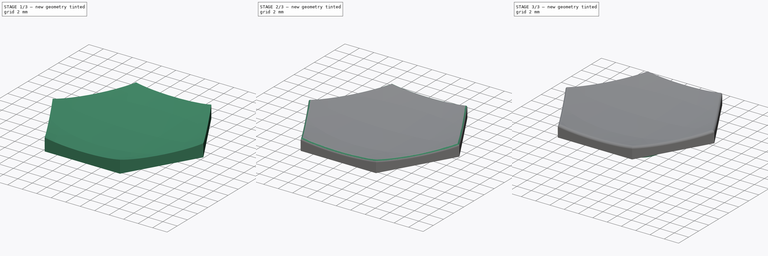
[diagram: build sequence overview — one tinted view per stage of 3, left to right]
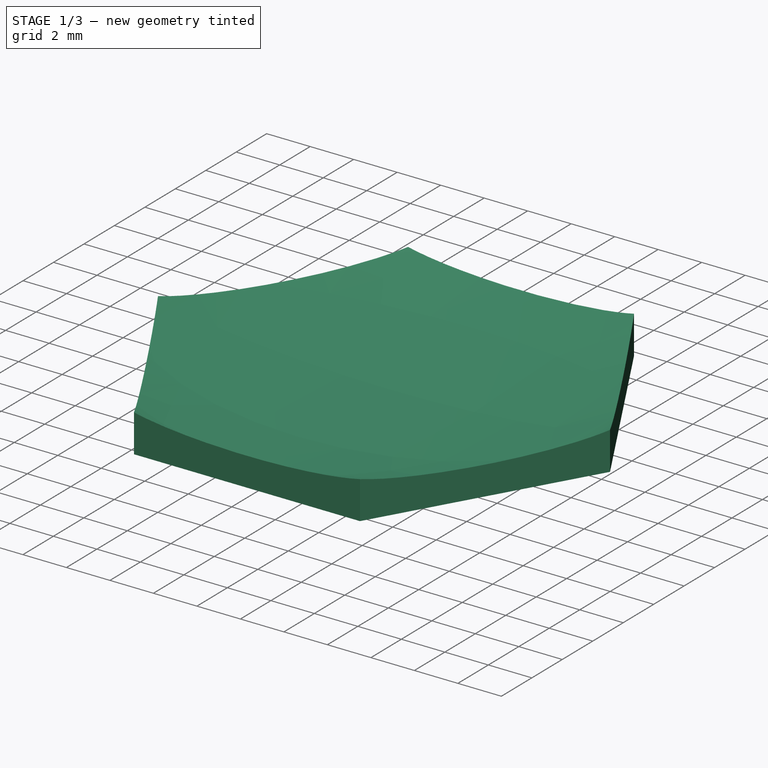
[diagram: stage 1 of 3 — iso view after this stage's code; geometry added in this stage tinted green]
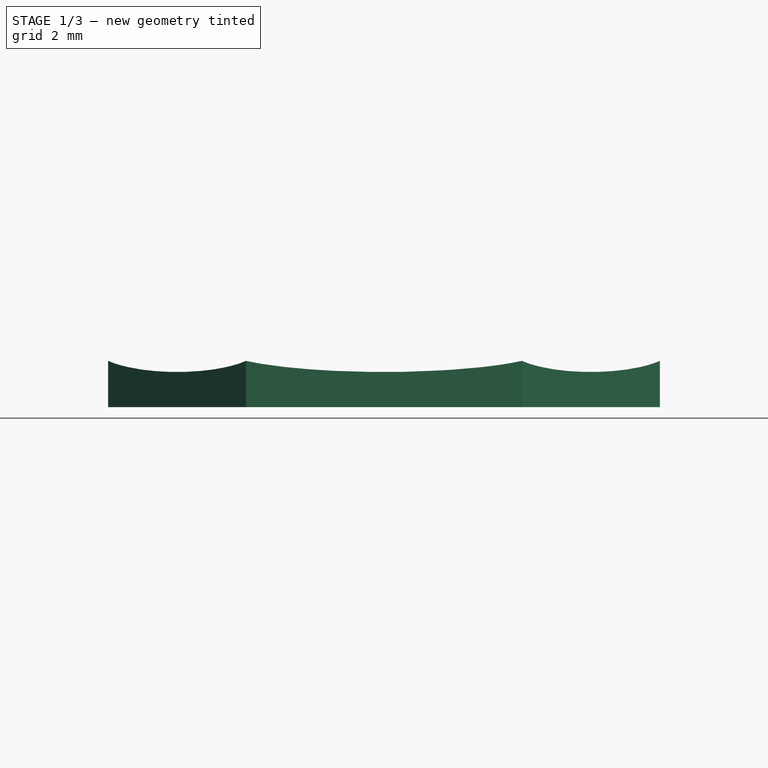
[diagram: stage 1 of 3 — front view after this stage's code; geometry added in this stage tinted green]
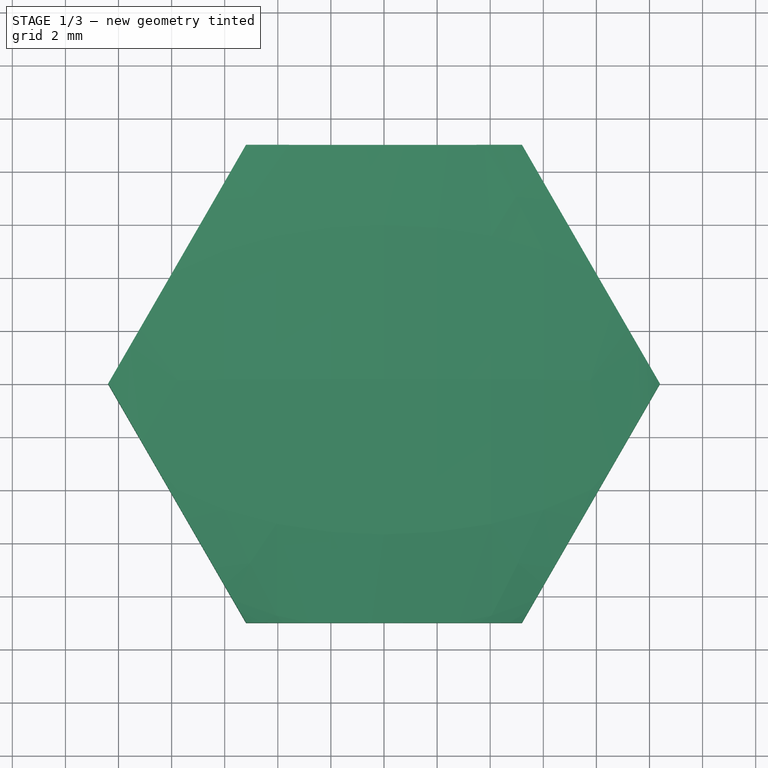
[diagram: stage 1 of 3 — top view after this stage's code; geometry added in this stage tinted green]
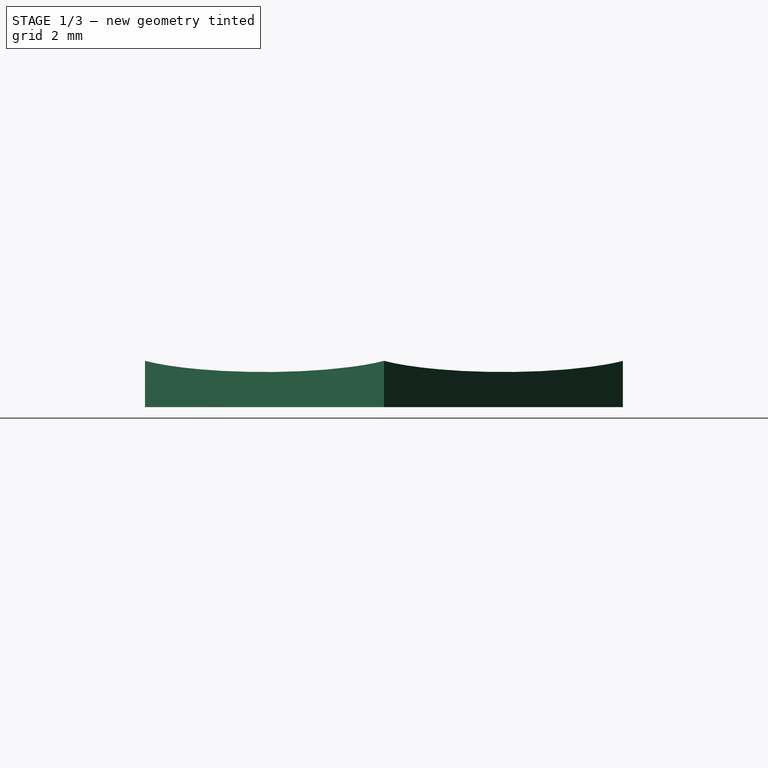
[diagram: stage 1 of 3 — right view after this stage's code; geometry added in this stage tinted green]
FCSTD DOCUMENT  (FreeCAD 0.18.4R)
Label: hex_keycap
License: All rights reserved
LicenseURL: http://en.wikipedia.org/wiki/All_rights_reserved
objects: Sketcher::SketchObject×3, PartDesign::Pad×2, PartDesign::SubtractiveEllipsoid×1, PartDesign::Fillet×1, PartDesign::Pocket×1, PartDesign::Body×1
note: 13 computed .brp shape members not serialized (recipe doc carries the construction recipe); baked Part::Feature solids carry a one-line shape summary decoded from their .brp

FEATURE [Sketcher::SketchObject] Sketch
  MapMode = 5
  Support = -> [XY_Plane]
  sketch-geometry (8):
    g0: LineSegment StartX=10.3923 StartY=-1.8e-15 StartZ=0 EndX=5.19615 EndY=9 EndZ=0
    g1: LineSegment StartX=5.19615 StartY=9 StartZ=0 EndX=-5.19615 EndY=9 EndZ=0
    g2: LineSegment StartX=-5.19615 StartY=9 StartZ=0 EndX=-10.3923 EndY=1.8e-15 EndZ=0
    g3: LineSegment StartX=-10.3923 StartY=1.8e-15 StartZ=0 EndX=-5.19615 EndY=-9 EndZ=0
    g4: LineSegment StartX=-5.19615 StartY=-9 StartZ=0 EndX=5.19615 EndY=-9 EndZ=0
    g5: LineSegment StartX=5.19615 StartY=-9 StartZ=0 EndX=10.3923 EndY=-1.8e-15 EndZ=0
    g6: Circle [constr] CenterX=0 CenterY=0 CenterZ=0 NormalX=0 NormalY=0 NormalZ=1 AngleXU=0 Radius=10.3923
    g7: LineSegment [constr] StartX=0 StartY=0 StartZ=0 EndX=0 EndY=9 EndZ=0
  constraints (19):
    c: Coincident(g0,g1)
    c: Coincident(g1,g2)
    c: Coincident(g2,g3)
    c: Coincident(g3,g4)
    c: Coincident(g4,g5)
    c: Coincident(g5,g0)
    c: Equal(g0, g1-g5) x5
    c: PointOnObject(g0,g6)
    c: PointOnObject(g1,g6)
    c: PointOnObject(g2,g6)
    c: PointOnObject(g3,g6)
    c: PointOnObject(g4,g6)
    c: PointOnObject(g5,g6)
    c: Coincident(g6,g-1)
    c: Vertical(g7)
    c: Coincident(g7,g-1)
    c: Horizontal(g1)
    c: PointOnObject(g7,g1)
    c: Distance(g7) = 9
FEATURE [PartDesign::Pad] Pad
  Length = 2
  Length2 = 100
  Profile = -> Sketch
  Type = 0
FEATURE [PartDesign::SubtractiveEllipsoid] Ellipsoid
  Angle1 = -90
  Angle2 = 90
  Angle3 = 358
  AttacherType = Attacher::AttachEngine3D
  AttachmentOffset = pos=(0,0,0.3) rot=(0,-1,0;1.5708rad)
  BaseFeature = -> Pad
  MapMode = 5
  Placement = pos=(0,0,2.3) rot=(0,-1,0;1.5708rad)
  Radius1 = 11
  Radius2 = 1.7
  Radius3 = 11
  Support = -> [Pad]
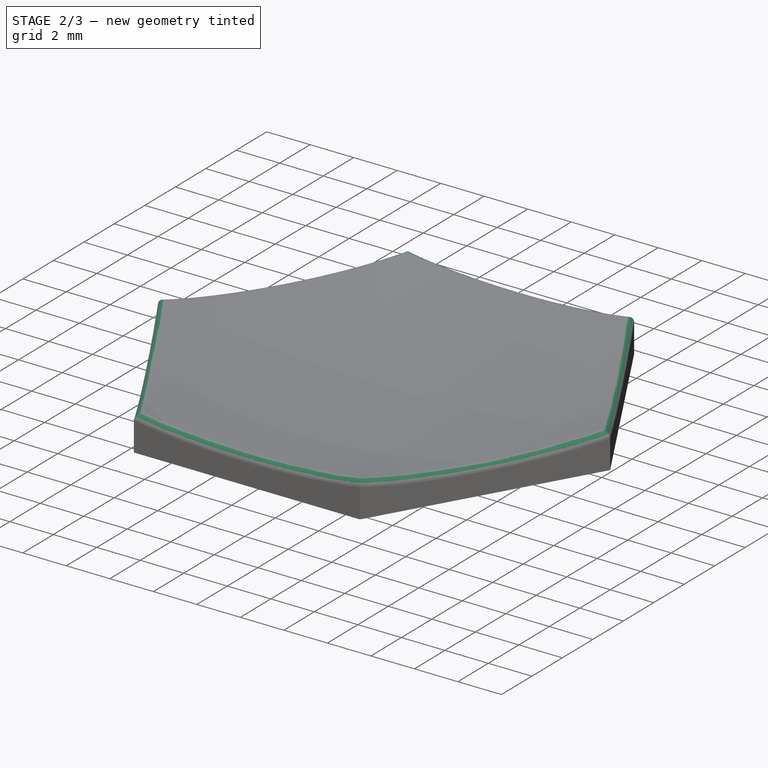
[diagram: stage 2 of 3 — iso view after this stage's code; geometry added in this stage tinted green]
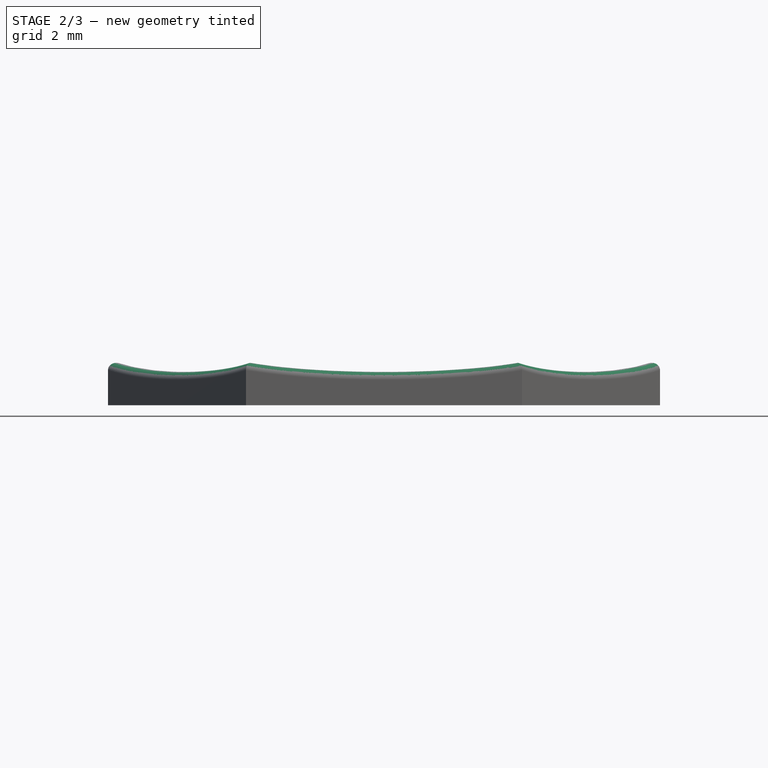
[diagram: stage 2 of 3 — front view after this stage's code; geometry added in this stage tinted green]
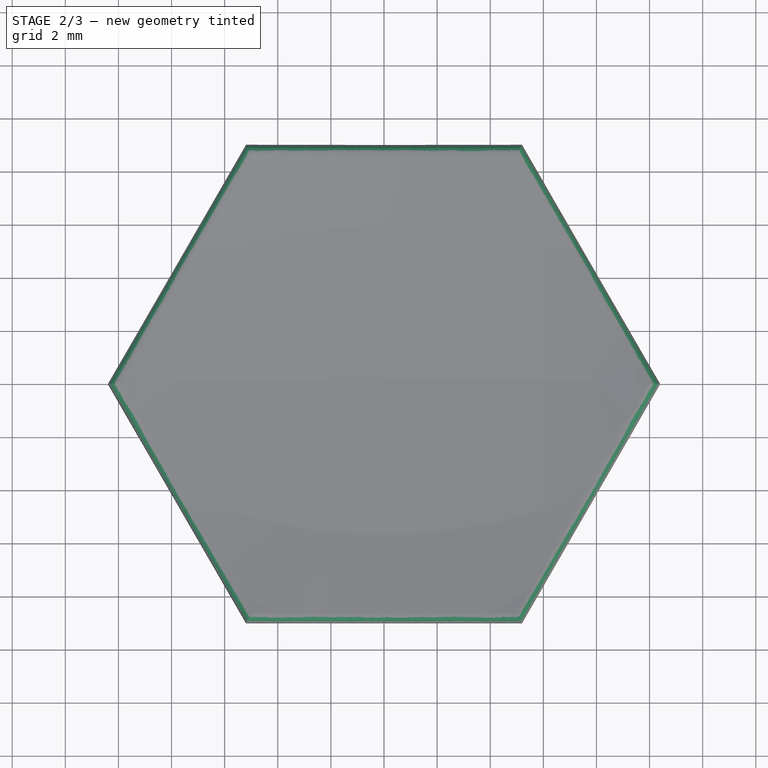
[diagram: stage 2 of 3 — top view after this stage's code; geometry added in this stage tinted green]
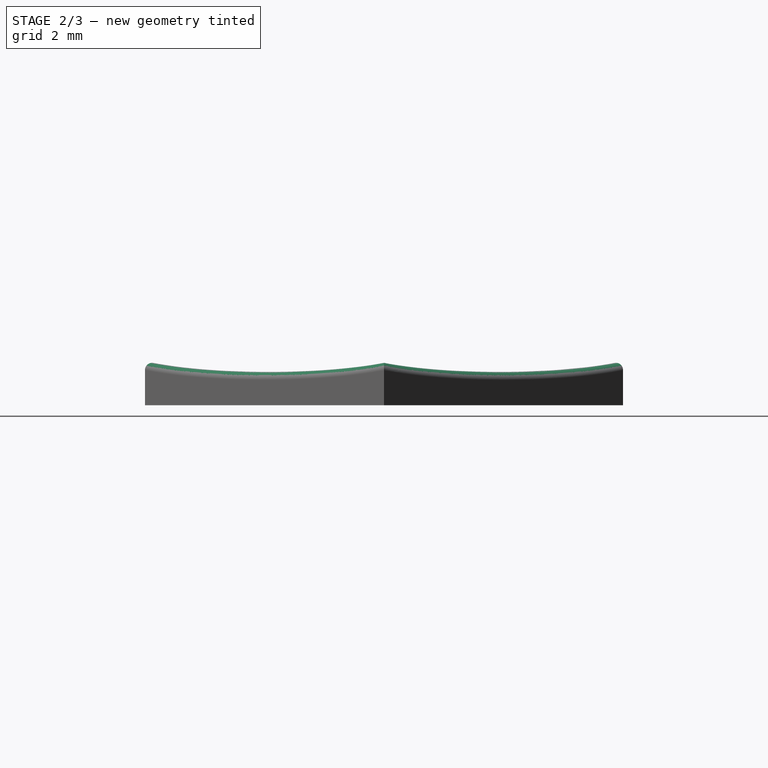
[diagram: stage 2 of 3 — right view after this stage's code; geometry added in this stage tinted green]
FEATURE [PartDesign::Fillet] Fillet
  Base = -> Ellipsoid [Face4]
  BaseFeature = -> Ellipsoid
  Placement = pos=(0,0,2.3) rot=(0,-1,0;1.5708rad)
  Radius = 0.3
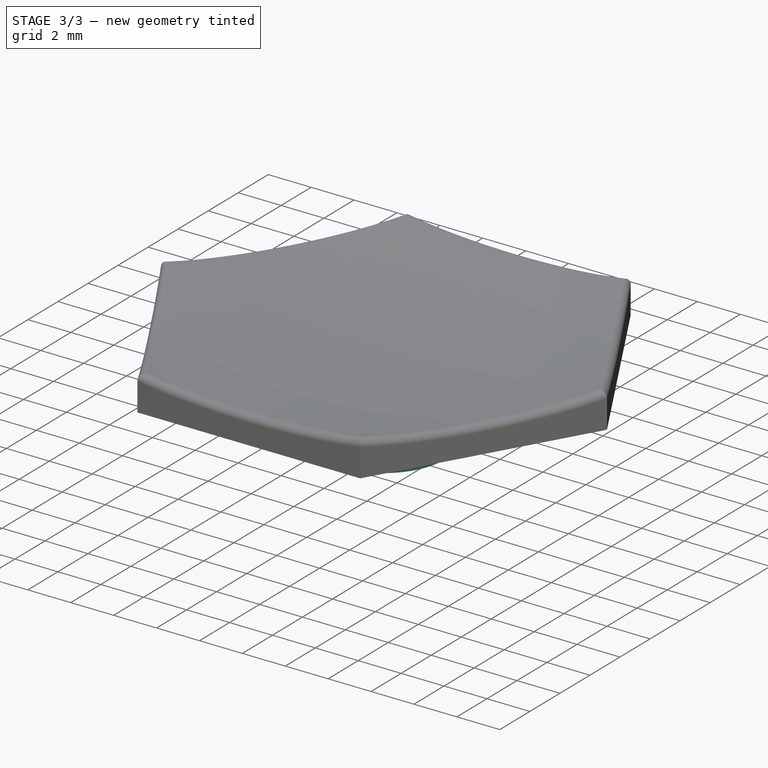
[diagram: stage 3 of 3 — iso view after this stage's code; geometry added in this stage tinted green]
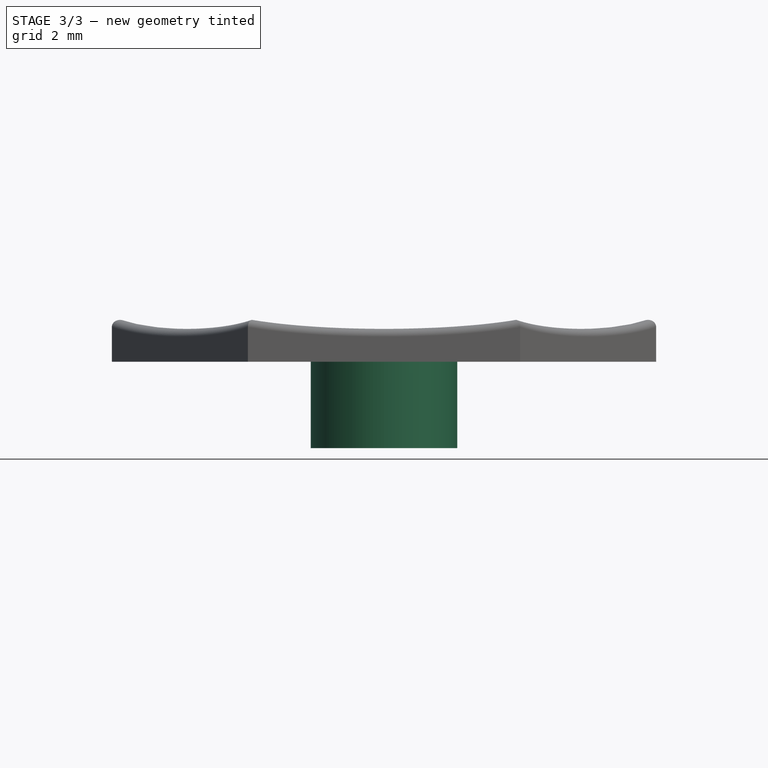
[diagram: stage 3 of 3 — front view after this stage's code; geometry added in this stage tinted green]
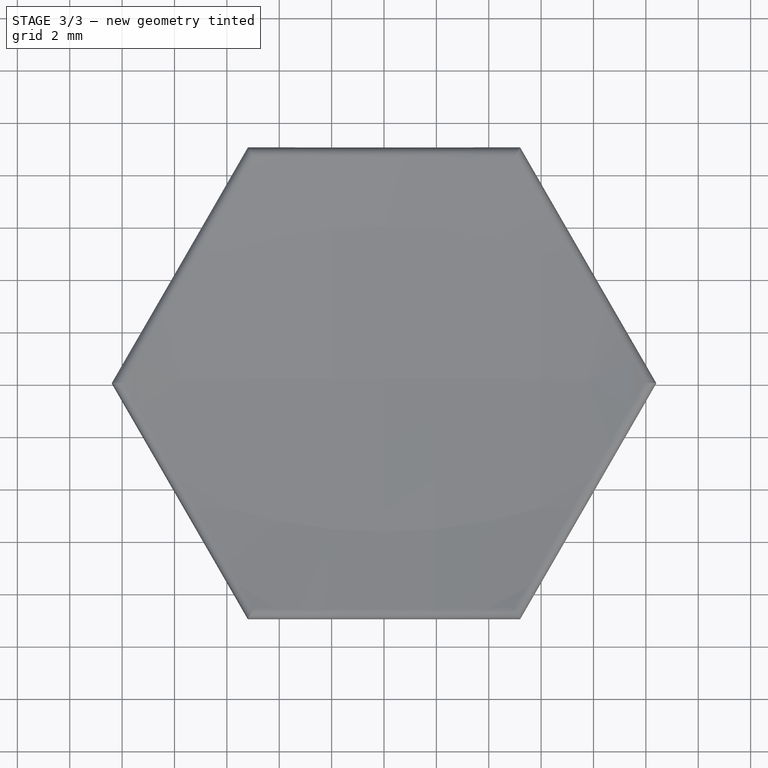
[diagram: stage 3 of 3 — top view after this stage's code; geometry added in this stage tinted green]
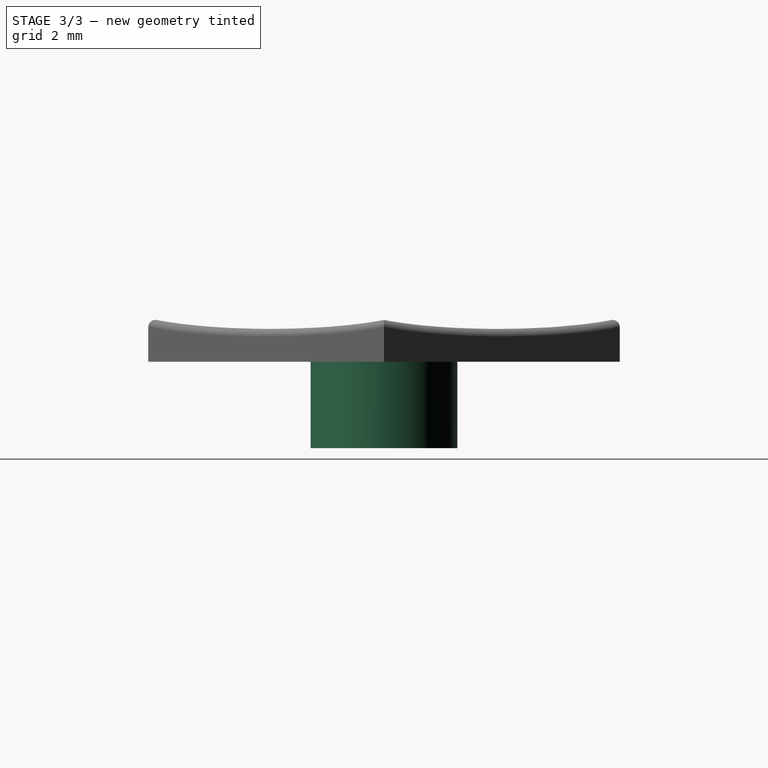
[diagram: stage 3 of 3 — right view after this stage's code; geometry added in this stage tinted green]
FEATURE [Sketcher::SketchObject] Sketch001
  MapMode = 5
  Placement = pos=(3e-16,0,0) rot=(0.707107,-0.707107,0;3.14159rad)
  Support = -> [Fillet]
  sketch-geometry (1):
    g0: Circle CenterX=0 CenterY=0 CenterZ=0 NormalX=0 NormalY=0 NormalZ=1 AngleXU=0 Radius=2.8
  constraints (2):
    c: Coincident(g0,g-1)
    c: Radius(g0) = 2.8
FEATURE [PartDesign::Pad] Pad001
  BaseFeature = -> Fillet
  Length = 3.3
  Length2 = 100
  Placement = pos=(0,0,2.3) rot=(0,-1,0;1.5708rad)
  Profile = -> Sketch001
  Type = 0
FEATURE [Sketcher::SketchObject] Sketch002
  AttachmentOffset = pos=(0,0,0) rot=(0,0,1;0.523599rad)
  MapMode = 5
  Placement = pos=(-6e-16,0,-3.3) rot=(0.5,-0.866025,0;3.14159rad)
  Support = -> [Pad001]
  sketch-geometry (15):
    g0: LineSegment StartX=-0.595 StartY=1.95 StartZ=0 EndX=0.595 EndY=1.95 EndZ=0
    g1: LineSegment StartX=0.595 StartY=1.95 StartZ=0 EndX=0.595 EndY=0.595 EndZ=0
    g2: LineSegment StartX=0.595 StartY=0.595 StartZ=0 EndX=1.95 EndY=0.595 EndZ=0
    g3: LineSegment StartX=1.95 StartY=0.595 StartZ=0 EndX=1.95 EndY=-0.595 EndZ=0
    g4: LineSegment StartX=1.95 StartY=-0.595 StartZ=0 EndX=0.595 EndY=-0.595 EndZ=0
    g5: LineSegment StartX=0.595 StartY=-0.595 StartZ=0 EndX=0.595 EndY=-1.95 EndZ=0
    g6: LineSegment StartX=0.595 StartY=-1.95 StartZ=0 EndX=-0.595 EndY=-1.95 EndZ=0
    g7: LineSegment StartX=-0.595 StartY=-1.95 StartZ=0 EndX=-0.595 EndY=-0.595 EndZ=0
    g8: LineSegment StartX=-0.595 StartY=-0.595 StartZ=0 EndX=-1.95 EndY=-0.595 EndZ=0
    g9: LineSegment StartX=-1.95 StartY=-0.595 StartZ=0 EndX=-1.95 EndY=0.595 EndZ=0
    g10: LineSegment StartX=-1.95 StartY=0.595 StartZ=0 EndX=-0.595 EndY=0.595 EndZ=0
    g11: LineSegment StartX=-0.595 StartY=0.595 StartZ=0 EndX=-0.595 EndY=1.95 EndZ=0
    g12: LineSegment [constr] StartX=-0.595 StartY=1.95 StartZ=0 EndX=-0.595 EndY=-1.95 EndZ=0
    g13: LineSegment [constr] StartX=-0.595 StartY=0.595 StartZ=0 EndX=0.595 EndY=-0.595 EndZ=0
    g14: LineSegment [constr] StartX=0.595 StartY=0.595 StartZ=0 EndX=-0.595 EndY=-0.595 EndZ=0
  constraints (42):
    c: Horizontal(g0)
    c: Horizontal(g2)
    c: Horizontal(g4)
    c: Horizontal(g6)
    c: Horizontal(g8)
    c: Horizontal(g10)
    c: Vertical(g11)
    c: Vertical(g1)
    c: Vertical(g3)
    c: Vertical(g5)
    c: Vertical(g7)
    c: Vertical(g9)
    c: Coincident(g0,g11)
    c: Coincident(g0,g1)
    c: Coincident(g1,g2)
    c: Coincident(g2,g3)
    c: Coincident(g3,g4)
    c: Coincident(g5,g4)
    c: Coincident(g5,g6)
    c: Coincident(g6,g7)
    c: Coincident(g7,g8)
    c: Coincident(g8,g9)
    c: Coincident(g9,g10)
    c: Coincident(g11,g10)
    c: Vertical(g12)
    c: Coincident(g12,g6)
    c: Distance(g12) = 3.9
    c: Coincident(g0,g12)
    c: Equal(g9,g3)
    c: Equal(g11,g1)
    c: Equal(g11,g7)
    c: Equal(g10,g2)
    c: Equal(g2,g4)
    c: Equal(g0,g3)
    c: Equal(g2,g1)
    c: Coincident(g14,g1)
    c: Coincident(g13,g4)
    c: Coincident(g14,g7)
    c: Coincident(g13,g10)
    c: PointOnObject(g-1,g14)
    c: PointOnObject(g-1,g13)
    c: Distance(g9) = 1.19
FEATURE [PartDesign::Pocket] Pocket
  BaseFeature = -> Pad001
  Length = 3.3
  Length2 = 100
  Placement = pos=(0,0,2.3) rot=(0,-1,0;1.5708rad)
  Profile = -> Sketch002
  Type = 0
FEATURE [PartDesign::Body] Body  label="hexagonal keycap"
  Group = -> [Sketch,Pad,Ellipsoid,Fillet,Sketch001,Pad001,Sketch002,Pocket]
  Origin = -> Origin
  Tip = -> Pocket
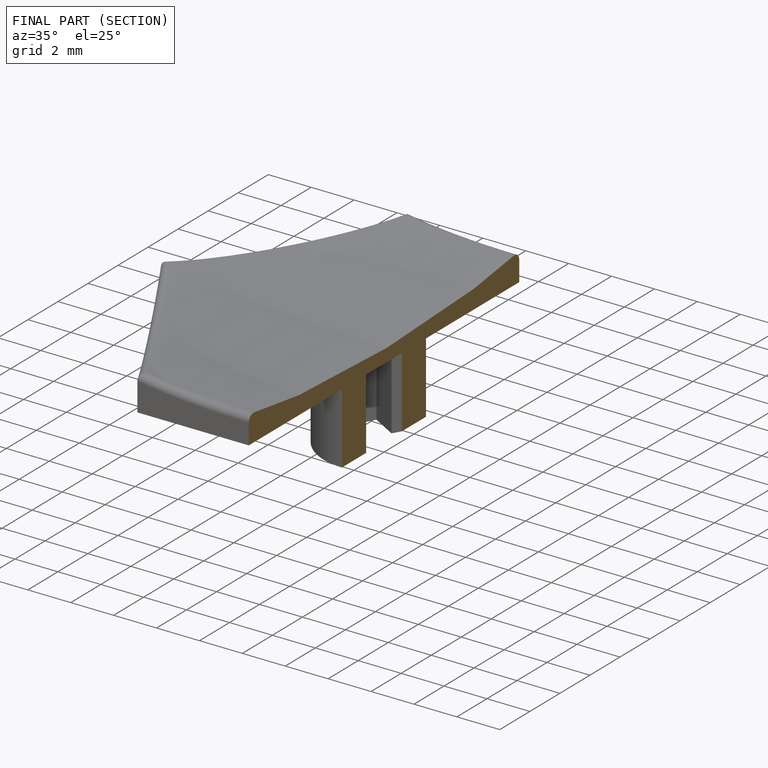
[diagram: finished part — half-section view (interior)]
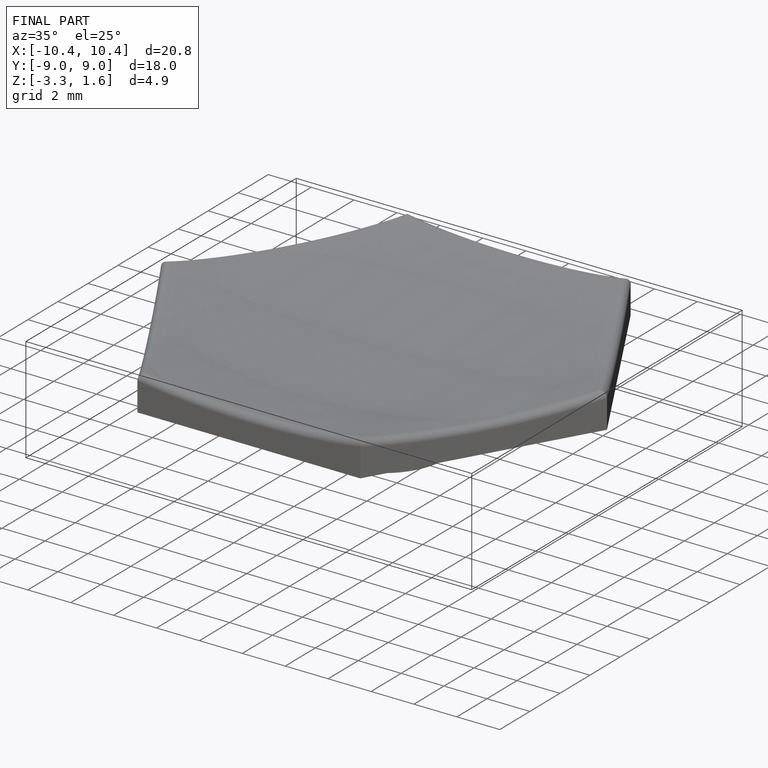
[diagram: finished part — iso view with bounding-box wireframe]
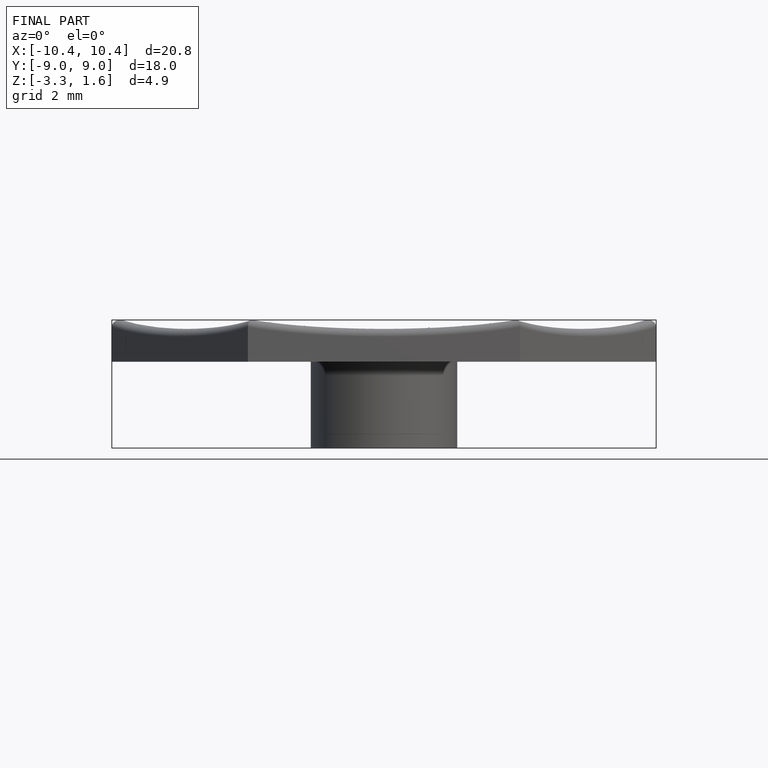
[diagram: finished part — front view with bounding-box wireframe]
